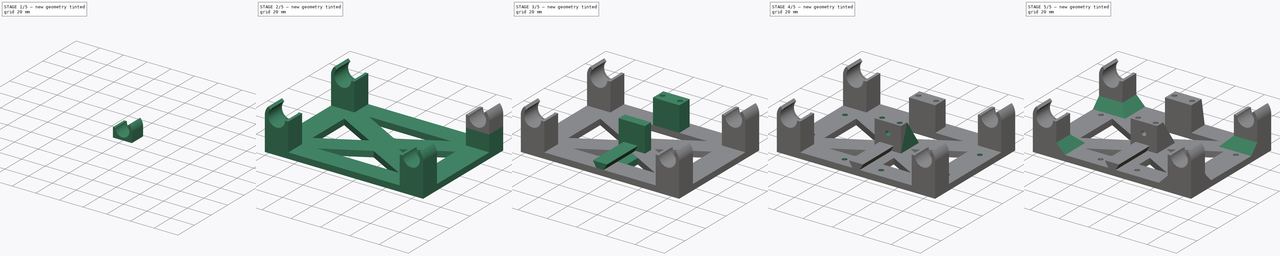
[diagram: build sequence overview — one tinted view per stage of 5, left to right]
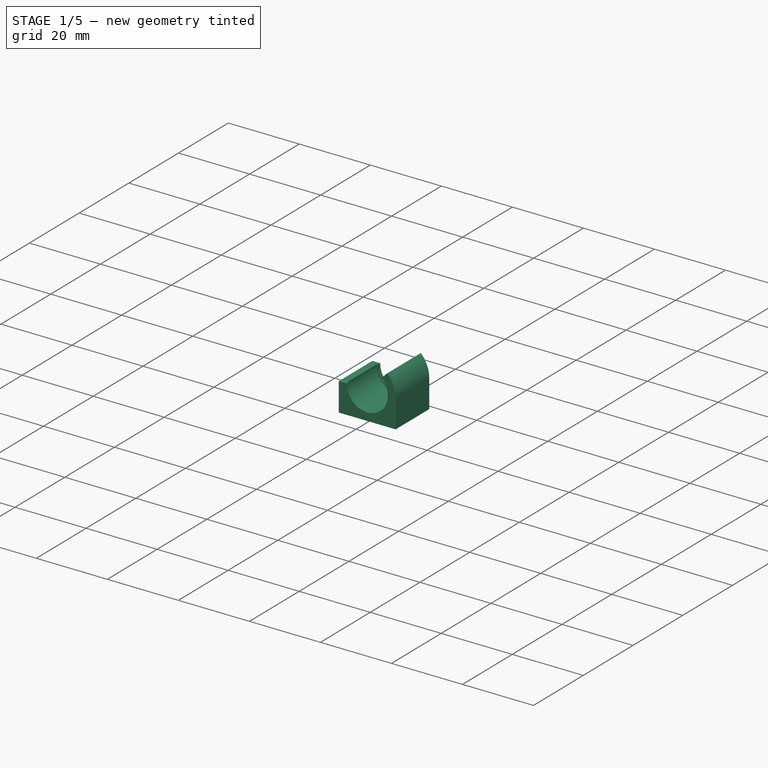
[diagram: stage 1 of 5 — iso view after this stage's code; geometry added in this stage tinted green]
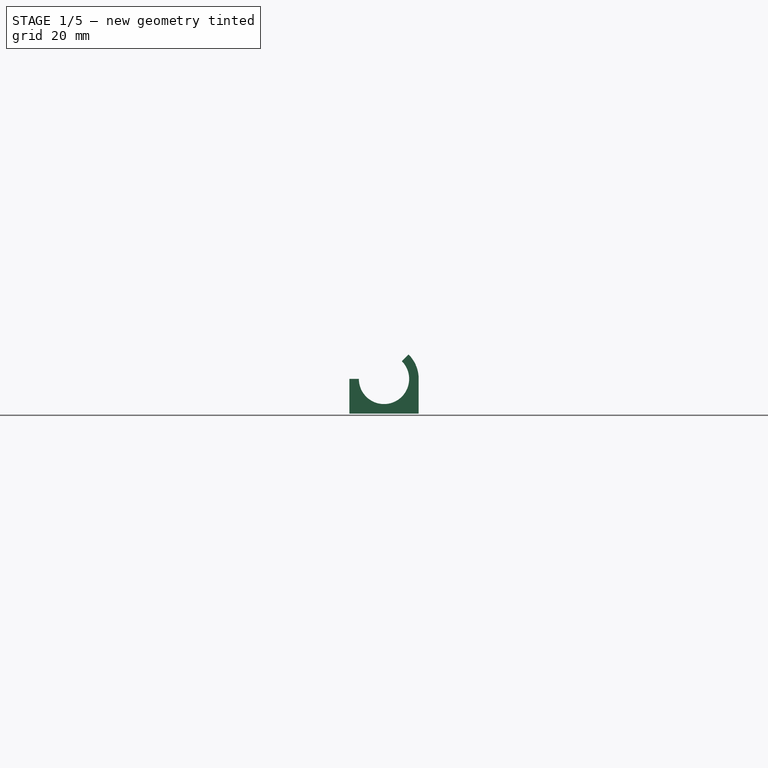
[diagram: stage 1 of 5 — front view after this stage's code; geometry added in this stage tinted green]
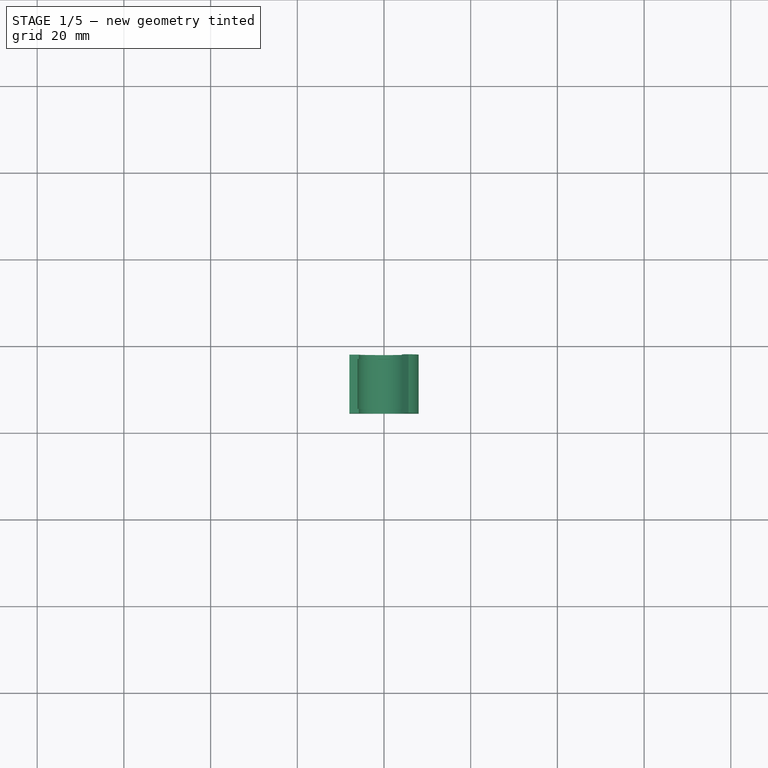
[diagram: stage 1 of 5 — top view after this stage's code; geometry added in this stage tinted green]
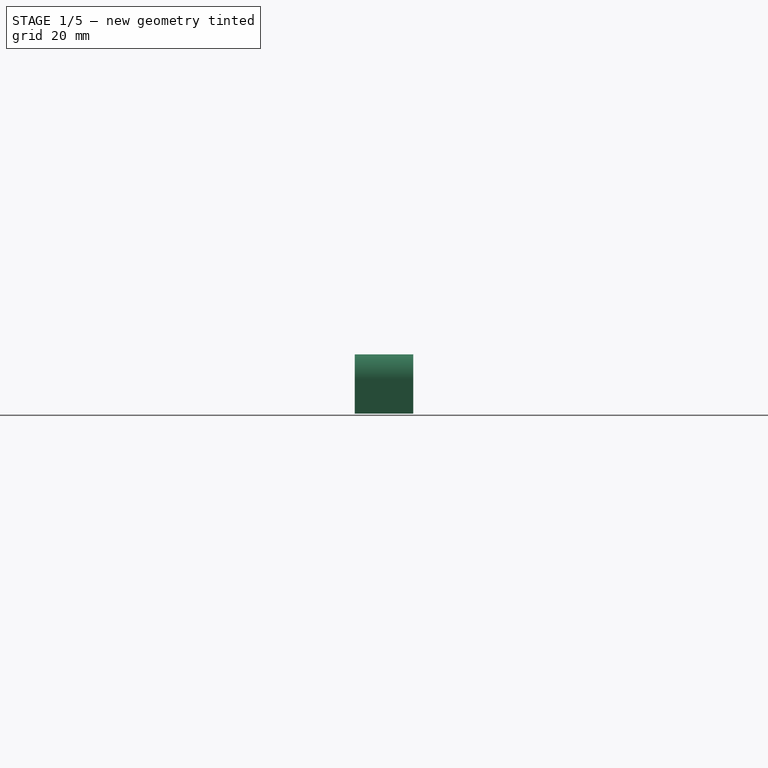
[diagram: stage 1 of 5 — right view after this stage's code; geometry added in this stage tinted green]
FCSTD DOCUMENT  (FreeCAD 0.18R13971 (Git))
Label: BedClamping
License: All rights reserved
LicenseURL: http://en.wikipedia.org/wiki/All_rights_reserved
objects: Sketcher::SketchObject×13, PartDesign::Pad×8, PartDesign::Pocket×5, Part::FeaturePython×5, PartDesign::Draft×2, PartDesign::Body×2, PartDesign::Plane×1, PartDesign::Chamfer×1, Part::MultiFuse×1
note: 51 computed .brp shape members not serialized (recipe doc carries the construction recipe); baked Part::Feature solids carry a one-line shape summary decoded from their .brp

FEATURE [Sketcher::SketchObject] Sketch  label="ClipSketch"
  MapMode = 5
  Placement = pos=(0,0,0) rot=(0.57735,0.57735,0.57735;2.0944rad)
  Support = -> [YZ_Plane]
  sketch-geometry (8):
    g0: LineSegment StartX=-8 StartY=0 StartZ=0 EndX=-8 EndY=-8 EndZ=0
    g1: LineSegment StartX=8 StartY=0 StartZ=0 EndX=8 EndY=-8 EndZ=0
    g2: LineSegment StartX=-8 StartY=-8 StartZ=0 EndX=8 EndY=-8 EndZ=0
    g3: ArcOfCircle CenterX=0 CenterY=0 CenterZ=0 NormalX=0 NormalY=0 NormalZ=1 AngleXU=0 Radius=8 StartAngle=2.35619 EndAngle=3.14159
    g4: ArcOfCircle CenterX=0 CenterY=0 CenterZ=0 NormalX=0 NormalY=0 NormalZ=1 AngleXU=0 Radius=6.1 StartAngle=2.35619 EndAngle=3.14159
    g5: ArcOfCircle CenterX=0 CenterY=0 CenterZ=0 NormalX=0 NormalY=0 NormalZ=1 AngleXU=0 Radius=6.1 StartAngle=3.14159 EndAngle=6.28319
    g6: LineSegment StartX=-5.65685 StartY=5.65685 StartZ=0 EndX=-4.31335 EndY=4.31335 EndZ=0
    g7: LineSegment StartX=8 StartY=0 StartZ=0 EndX=6.1 EndY=0 EndZ=0
  constraints (22):
    c: Symmetric(g0,g1,g-2)
    c: Symmetric(g0,g1,g-2)
    c: PointOnObject(g0,g-1)
    c: Vertical(g0)
    c: Coincident(g2,g0)
    c: Coincident(g2,g1)
    c: Distance(g1) = 8
    c: Coincident(g3,g-1)
    c: Coincident(g3,g0)
    c: Radius(g3) = 8
    c: Angle(g3) = 0.785398
    c: Coincident(g4,g3)
    c: PointOnObject(g4,g-1)
    c: PointOnObject(g5,g-1)
    c: Coincident(g5,g3)
    c: Coincident(g5,g4)
    c: Coincident(g6,g3)
    c: Coincident(g6,g4)
    c: Coincident(g7,g1)
    c: Coincident(g7,g5)
    c: Radius(g5) = 6.1
    c: Perpendicular(g3,g6)
FEATURE [PartDesign::Pad] Pad  label="ClipPad"
  Length = 13.5
  Length2 = 100
  Placement = pos=(0,0,0) rot=(0.57735,0.57735,0.57735;2.0944rad)
  Profile = -> Sketch
  Type = 0
FEATURE [Sketcher::SketchObject] Sketch001  label="ClipNotch1Sketch"
  ExternalGeometry = -> [Pad]
  MapMode = 5
  Placement = pos=(0,0,0) rot=(0.57735,0.57735,0.57735;2.0944rad)
  Support = -> [YZ_Plane]
  sketch-geometry (4):
    g0: ArcOfCircle CenterX=0 CenterY=0 CenterZ=0 NormalX=0 NormalY=0 NormalZ=1 AngleXU=0 Radius=5.8 StartAngle=2.35619 EndAngle=6.28319
    g1: ArcOfCircle CenterX=0 CenterY=0 CenterZ=0 NormalX=0 NormalY=0 NormalZ=1 AngleXU=0 Radius=6.1 StartAngle=2.35619 EndAngle=6.28319
    g2: LineSegment StartX=-4.10122 StartY=4.10122 StartZ=0 EndX=-4.31335 EndY=4.31335 EndZ=0
    g3: LineSegment StartX=5.8 StartY=0 StartZ=0 EndX=6.1 EndY=0 EndZ=0
  constraints (11):
    c: Coincident(g1,g-4)
    c: Coincident(g1,g-3)
    c: Coincident(g2,g1)
    c: Perpendicular(g1,g2)
    c: Coincident(g3,g1)
    c: Coincident(g0,g3)
    c: Coincident(g0,g2)
    c: Coincident(g0,g-1)
    c: PointOnObject(g0,g-1)
    c: Perpendicular(g1,g3)
    c: Radius(g0) = 5.8
FEATURE [PartDesign::Pad] Pad001  label="ClipNotch1Pad"
  BaseFeature = -> Pad
  Length = 1
  Length2 = 100
  Placement = pos=(0,0,0) rot=(0.57735,0.57735,0.57735;2.0944rad)
  Profile = -> Sketch001
  Type = 0
FEATURE [PartDesign::Body] Body001  label="Frame"
  Group = -> [Sketch003,Pad003,Sketch004,Pad004,Sketch005,Pad005,Sketch006,Pocket,Sketch007,Pad006,Sketch008,Pad007,Sketch009,Pocket001,Sketch010,Sketch011,Pocket003,Sketch012,Pocket004,Draft,DatumPlane,Pocket002,Draft001,Chamfer]
  Origin = -> Origin001
  Tip = -> Chamfer
FEATURE [Sketcher::SketchObject] Sketch013  label="ClipNotch2Sketch"
  ExternalGeometry = -> [Pad001]
  MapMode = 5
  Placement = pos=(13.5,-2e-12,2e-12) rot=(0.57735,0.57735,0.57735;2.0944rad)
  Support = -> [Pad001]
  sketch-geometry (4):
    g0: ArcOfCircle CenterX=0 CenterY=0 CenterZ=0 NormalX=0 NormalY=0 NormalZ=1 AngleXU=0 Radius=6.1 StartAngle=2.35619 EndAngle=6.28319
    g1: ArcOfCircle CenterX=0 CenterY=0 CenterZ=0 NormalX=0 NormalY=0 NormalZ=1 AngleXU=0 Radius=5.8 StartAngle=2.35619 EndAngle=6.28319
    g2: LineSegment StartX=-4.31335 StartY=4.31335 StartZ=0 EndX=-4.10122 EndY=4.10122 EndZ=0
    g3: LineSegment StartX=5.8 StartY=0 StartZ=0 EndX=6.1 EndY=0 EndZ=0
  constraints (10):
    c: Coincident(g0,g-1)
    c: Coincident(g0,g-3)
    c: PointOnObject(g0,g-1)
    c: Coincident(g1,g0)
    c: Coincident(g1,g-4)
    c: PointOnObject(g1,g-1)
    c: Coincident(g2,g0)
    c: Coincident(g2,g1)
    c: Coincident(g3,g1)
    c: Coincident(g3,g0)
FEATURE [PartDesign::Pad] Pad008  label="ClipNotch2Pad"
  BaseFeature = -> Pad001
  Length = 1
  Length2 = 100
  Placement = pos=(0,0,0) rot=(0.57735,0.57735,0.57735;2.0944rad)
  Profile = -> Sketch013
  Reversed = true
  Type = 0
FEATURE [Part::FeaturePython] Clone003  label="Clip4"  # Draft clone (typed FeaturePython)
  AttacherType = Attacher::AttachEngine3D
  Fuse = false
  Objects = -> [Body]
  Placement = pos=(100,64.5,23) rot=(0,0,1;1.5708rad)
  Scale = (1,1,1)
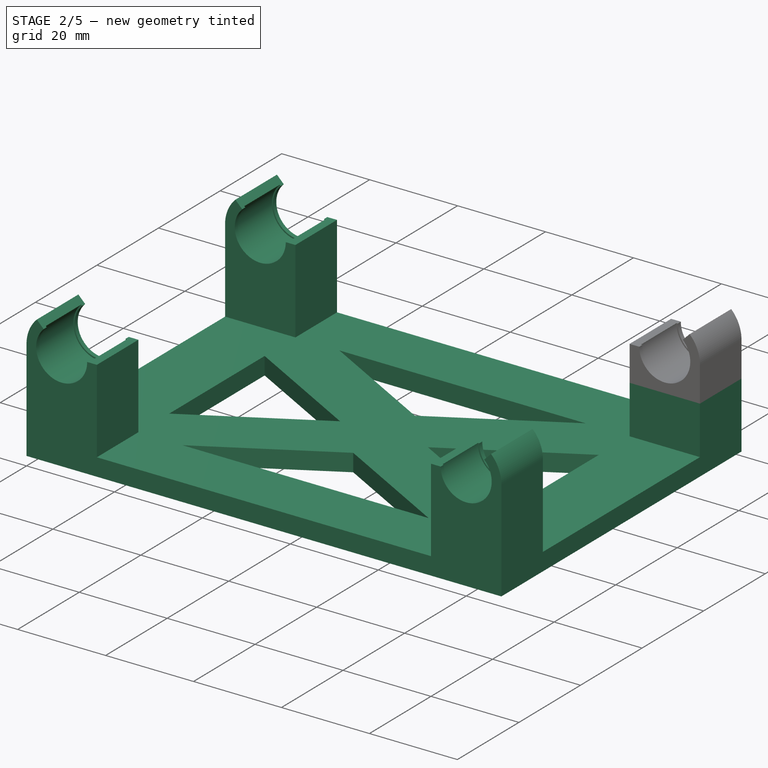
[diagram: stage 2 of 5 — iso view after this stage's code; geometry added in this stage tinted green]
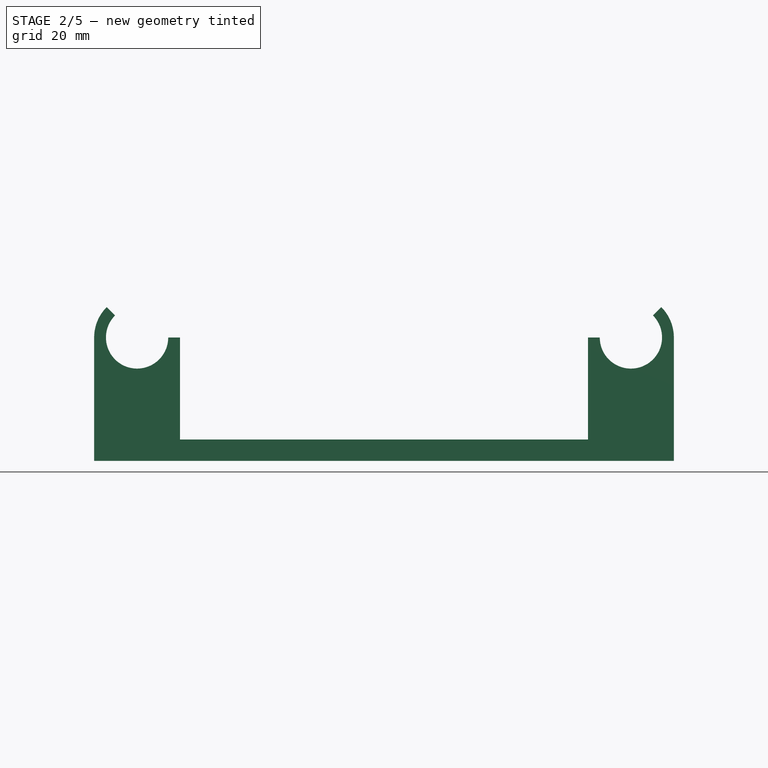
[diagram: stage 2 of 5 — front view after this stage's code; geometry added in this stage tinted green]
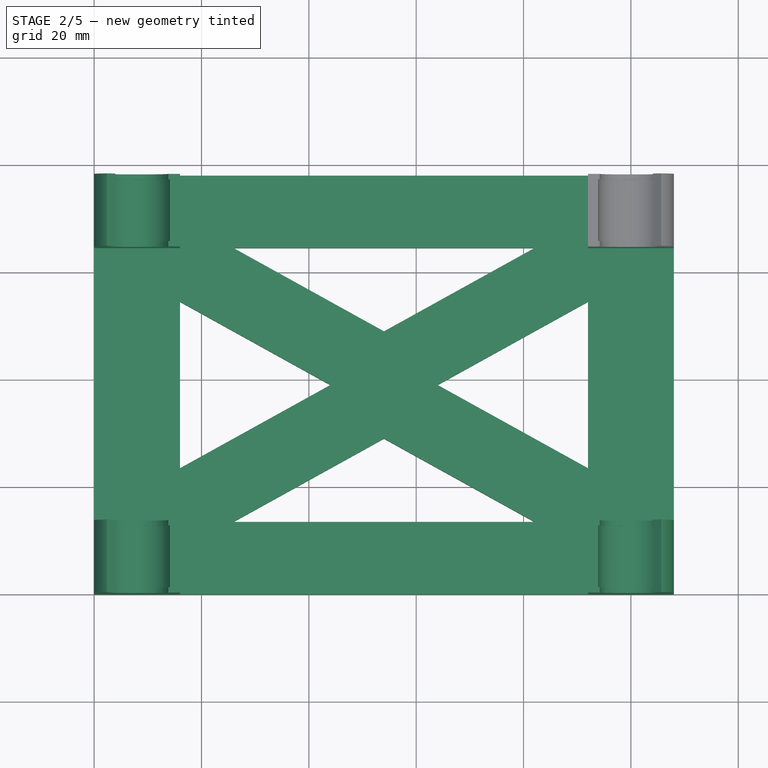
[diagram: stage 2 of 5 — top view after this stage's code; geometry added in this stage tinted green]
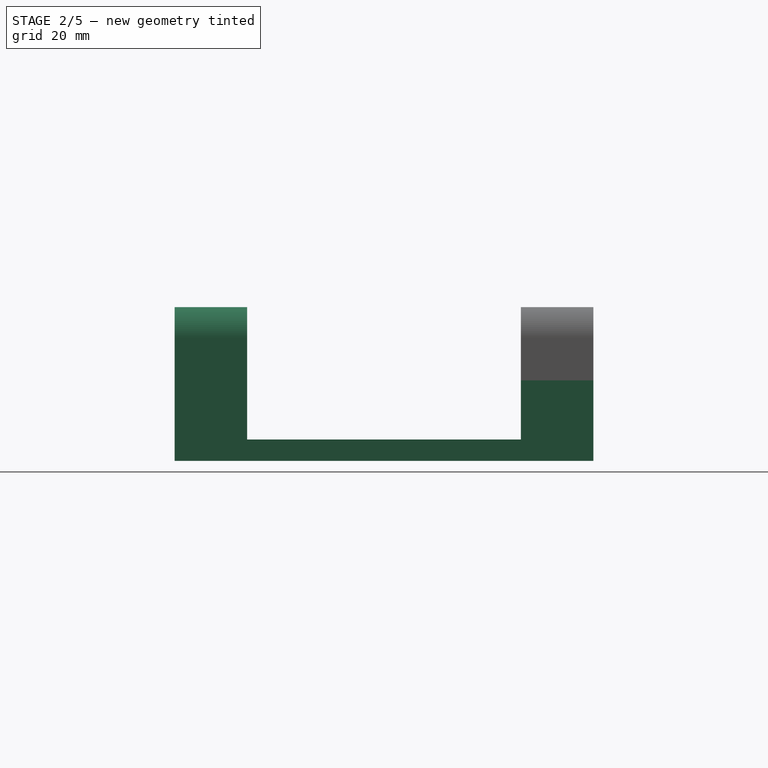
[diagram: stage 2 of 5 — right view after this stage's code; geometry added in this stage tinted green]
FEATURE [Sketcher::SketchObject] Sketch003  label="FrameSketch"
  MapMode = 5
  Support = -> [XY_Plane001]
  sketch-geometry (28):
    g0: LineSegment StartX=0 StartY=0 StartZ=0 EndX=108 EndY=0 EndZ=0
    g1: LineSegment StartX=108 StartY=0 StartZ=0 EndX=108 EndY=78 EndZ=0
    g2: LineSegment StartX=108 StartY=78 StartZ=0 EndX=0 EndY=78 EndZ=0
    g3: LineSegment StartX=0 StartY=78 StartZ=0 EndX=0 EndY=0 EndZ=0
    g4: LineSegment StartX=26 StartY=64.5 StartZ=0 EndX=82 EndY=64.5 EndZ=0
    g5: LineSegment StartX=92 StartY=54.5 StartZ=0 EndX=92 EndY=23.5 EndZ=0
    g6: LineSegment StartX=82 StartY=13.5 StartZ=0 EndX=26 EndY=13.5 EndZ=0
    g7: LineSegment StartX=16 StartY=23.5 StartZ=0 EndX=16 EndY=54.5 EndZ=0
    g8: LineSegment StartX=16 StartY=23.5 StartZ=0 EndX=44 EndY=39 EndZ=0
    g9: LineSegment StartX=26 StartY=13.5 StartZ=0 EndX=54 EndY=29 EndZ=0
    g10: LineSegment StartX=26 StartY=64.5 StartZ=0 EndX=54 EndY=49 EndZ=0
    g11: LineSegment StartX=82 StartY=13.5 StartZ=0 EndX=54 EndY=29 EndZ=0
    g12: LineSegment StartX=64 StartY=39 StartZ=0 EndX=92 EndY=23.5 EndZ=0
    g13: LineSegment StartX=54 StartY=49 StartZ=0 EndX=82 EndY=64.5 EndZ=0
    g14: LineSegment StartX=44 StartY=39 StartZ=0 EndX=16 EndY=54.5 EndZ=0
    g15: LineSegment StartX=64 StartY=39 StartZ=0 EndX=92 EndY=54.5 EndZ=0
    g16: LineSegment [constr] StartX=54 StartY=29 StartZ=0 EndX=54 EndY=39 EndZ=0
    g17: LineSegment [constr] StartX=54 StartY=39 StartZ=0 EndX=54 EndY=49 EndZ=0
    g18: LineSegment [constr] StartX=64 StartY=39 StartZ=0 EndX=54 EndY=39 EndZ=0
    g19: LineSegment [constr] StartX=44 StartY=39 StartZ=0 EndX=54 EndY=39 EndZ=0
    g20: LineSegment [constr] StartX=26 StartY=64.5 StartZ=0 EndX=16 EndY=64.5 EndZ=0
    g21: LineSegment [constr] StartX=16 StartY=64.5 StartZ=0 EndX=16 EndY=54.5 EndZ=0
    g22: LineSegment [constr] StartX=16 StartY=23.5 StartZ=0 EndX=16 EndY=13.5 EndZ=0
    g23: LineSegment [constr] StartX=16 StartY=13.5 StartZ=0 EndX=26 EndY=13.5 EndZ=0
    g24: LineSegment [constr] StartX=82 StartY=13.5 StartZ=0 EndX=92 EndY=13.5 EndZ=0
    g25: LineSegment [constr] StartX=92 StartY=13.5 StartZ=0 EndX=92 EndY=23.5 EndZ=0
    g26: LineSegment [constr] StartX=92 StartY=54.5 StartZ=0 EndX=92 EndY=64.5 EndZ=0
    g27: LineSegment [constr] StartX=82 StartY=64.5 StartZ=0 EndX=92 EndY=64.5 EndZ=0
  constraints (76):
    c: Coincident(g0,g1)
    c: Coincident(g1,g2)
    c: Coincident(g2,g3)
    c: Coincident(g3,g0)
    c: Horizontal(g0)
    c: Horizontal(g2)
    c: Vertical(g1)
    c: Vertical(g3)
    c: Coincident(g0,g-1)
    c: Distance(g2) = 108
    c: Distance(g3) = 78
    c: Horizontal(g4)
    c: Horizontal(g6)
    c: Vertical(g5)
    c: Vertical(g7)
    c: Coincident(g13,g10)
    c: Coincident(g14,g8)
    c: Coincident(g9,g11)
    c: Coincident(g15,g12)
    c: Equal(g10,g13)
    c: Equal(g13,g9)
    c: Equal(g9,g11)
    c: Equal(g14,g8)
    c: Equal(g8,g12)
    c: Equal(g12,g15)
    c: Coincident(g16,g9)
    c: Coincident(g17,g16)
    c: Coincident(g17,g10)
    c: Coincident(g18,g12)
    c: Coincident(g18,g16)
    c: Horizontal(g18)
    c: Coincident(g19,g8)
    c: Coincident(g19,g16)
    c: Vertical(g17)
    c: Equal(g18,g19)
    c: Equal(g19,g16)
    c: Equal(g16,g17)
    c: Horizontal(g19)
    c: Vertical(g16)
    c: Parallel(g15,g13)
    c: Parallel(g8,g9)
    c: Parallel(g14,g10)
    c: Coincident(g4,g13)
    c: Coincident(g5,g15)
    c: Coincident(g5,g12)
    c: Coincident(g6,g11)
    c: Coincident(g4,g10)
    c: Coincident(g7,g14)
    c: Coincident(g7,g8)
    c: Coincident(g6,g9)
    c: Coincident(g20,g4)
    c: Coincident(g21,g20)
    c: Coincident(g21,g7)
    c: Coincident(g22,g7)
    c: Coincident(g23,g22)
    c: Coincident(g23,g6)
    c: Coincident(g24,g6)
    c: Coincident(g25,g5)
    c: Coincident(g26,g5)
    c: Coincident(g27,g4)
    c: Coincident(g27,g26)
    c: Coincident(g24,g25)
    c: Vertical(g21)
    c: Horizontal(g20)
    c: DistanceY(g0,g22) = 13.5
    c: DistanceX(g0,g22) = 16
    c: DistanceX(g24,g0) = 16
    c: DistanceY(g20,g2) = 13.5
    c: Equal(g21,g20)
    c: Equal(g20,g27)
    c: Equal(g27,g26)
    c: Equal(g26,g25)
    c: Equal(g25,g24)
    c: Equal(g24,g23)
    c: Equal(g23,g22)
    c: Distance(g8,g12) = 20
FEATURE [PartDesign::Pad] Pad003  label="FramePad"
  Length = 4
  Length2 = 100
  Profile = -> Sketch003
  Type = 0
FEATURE [Sketcher::SketchObject] Sketch004  label="BearingsBaseSketch"
  ExternalGeometry = -> [Pad003]
  MapMode = 5
  Support = -> [XY_Plane001]
  sketch-geometry (16):
    g0: LineSegment StartX=0 StartY=78 StartZ=0 EndX=16 EndY=78 EndZ=0
    g1: LineSegment StartX=16 StartY=78 StartZ=0 EndX=16 EndY=64.5 EndZ=0
    g2: LineSegment StartX=16 StartY=64.5 StartZ=0 EndX=0 EndY=64.5 EndZ=0
    g3: LineSegment StartX=0 StartY=64.5 StartZ=0 EndX=0 EndY=78 EndZ=0
    g4: LineSegment StartX=108 StartY=78 StartZ=0 EndX=92 EndY=78 EndZ=0
    g5: LineSegment StartX=92 StartY=78 StartZ=0 EndX=92 EndY=64.5 EndZ=0
    g6: LineSegment StartX=92 StartY=64.5 StartZ=0 EndX=108 EndY=64.5 EndZ=0
    g7: LineSegment StartX=108 StartY=64.5 StartZ=0 EndX=108 EndY=78 EndZ=0
    g8: LineSegment StartX=108 StartY=0 StartZ=0 EndX=92 EndY=0 EndZ=0
    g9: LineSegment StartX=92 StartY=0 StartZ=0 EndX=92 EndY=13.5 EndZ=0
    g10: LineSegment StartX=92 StartY=13.5 StartZ=0 EndX=108 EndY=13.5 EndZ=0
    g11: LineSegment StartX=108 StartY=13.5 StartZ=0 EndX=108 EndY=0 EndZ=0
    g12: LineSegment StartX=0 StartY=0 StartZ=0 EndX=16 EndY=0 EndZ=0
    g13: LineSegment StartX=16 StartY=0 StartZ=0 EndX=16 EndY=13.5 EndZ=0
    g14: LineSegment StartX=16 StartY=13.5 StartZ=0 EndX=0 EndY=13.5 EndZ=0
    g15: LineSegment StartX=0 StartY=13.5 StartZ=0 EndX=0 EndY=0 EndZ=0
  constraints (44):
    c: Coincident(g0,g1)
    c: Coincident(g1,g2)
    c: Coincident(g2,g3)
    c: Coincident(g3,g0)
    c: Horizontal(g0)
    c: Horizontal(g2)
    c: Vertical(g1)
    c: Vertical(g3)
    c: Coincident(g0,g-6)
    c: Coincident(g4,g5)
    c: Coincident(g5,g6)
    c: Coincident(g6,g7)
    c: Coincident(g7,g4)
    c: Horizontal(g4)
    c: Horizontal(g6)
    c: Vertical(g5)
    c: Vertical(g7)
    c: Coincident(g4,g-4)
    c: Coincident(g8,g9)
    c: Coincident(g9,g10)
    c: Coincident(g10,g11)
    c: Coincident(g11,g8)
    c: Horizontal(g8)
    c: Horizontal(g10)
    c: Vertical(g9)
    c: Vertical(g11)
    c: Coincident(g8,g-5)
    c: Coincident(g12,g13)
    c: Coincident(g13,g14)
    c: Coincident(g14,g15)
    c: Coincident(g15,g12)
    c: Horizontal(g12)
    c: Horizontal(g14)
    c: Vertical(g13)
    c: Vertical(g15)
    c: Coincident(g12,g-1)
    c: Equal(g2,g6)
    c: Equal(g6,g10)
    c: Equal(g10,g14)
    c: Equal(g1,g13)
    c: Equal(g13,g9)
    c: Equal(g9,g5)
    c: Distance(g1) = 13.5
    c: Distance(g2) = 16
FEATURE [PartDesign::Pad] Pad004  label="BearingsBasePad"
  BaseFeature = -> Pad003
  Length = 15
  Length2 = 100
  Profile = -> Sketch004
  Type = 0
FEATURE [PartDesign::Body] Body  label="Clip_LM6UU"
  Group = -> [Sketch,Pad,Sketch001,Pad001,Sketch013,Pad008]
  Origin = -> Origin
  Tip = -> Pad008
FEATURE [Part::FeaturePython] Clone  label="Clip1"  # Draft clone (typed FeaturePython)
  AttacherType = Attacher::AttachEngine3D
  Fuse = false
  Objects = -> [Body]
  Placement = pos=(8,13.5,23) rot=(0,0,-1;1.5708rad)
  Scale = (1,1,1)
FEATURE [Part::FeaturePython] Clone001  label="Clip2"  # Draft clone (typed FeaturePython)
  AttacherType = Attacher::AttachEngine3D
  Fuse = false
  Objects = -> [Body]
  Placement = pos=(8,78,23) rot=(0,0,-1;1.5708rad)
  Scale = (1,1,1)
FEATURE [Part::FeaturePython] Clone002  label="Clip3"  # Draft clone (typed FeaturePython)
  AttacherType = Attacher::AttachEngine3D
  Fuse = false
  Objects = -> [Body]
  Placement = pos=(100,0,23) rot=(0,0,1;1.5708rad)
  Scale = (1,1,1)
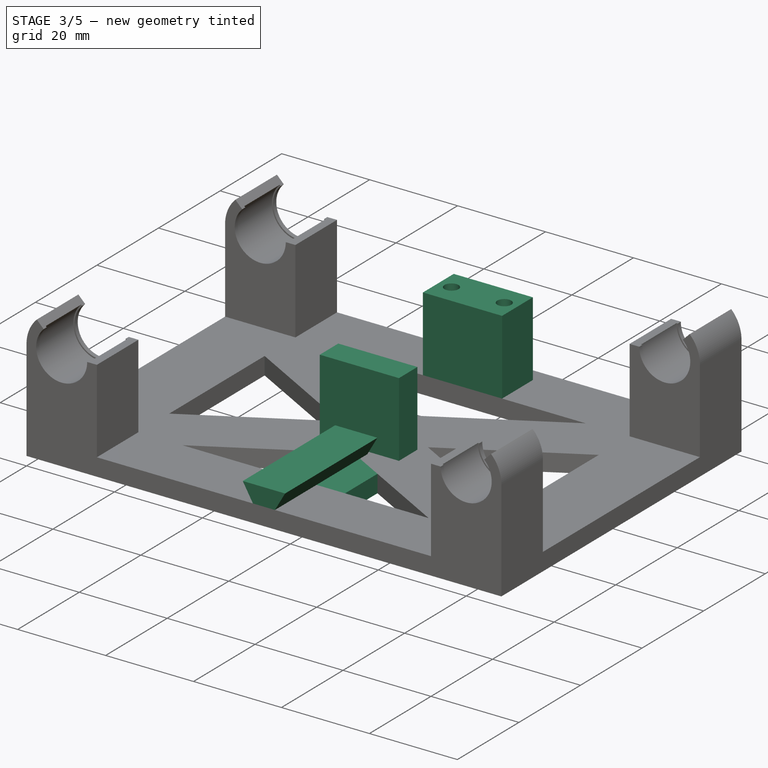
[diagram: stage 3 of 5 — iso view after this stage's code; geometry added in this stage tinted green]
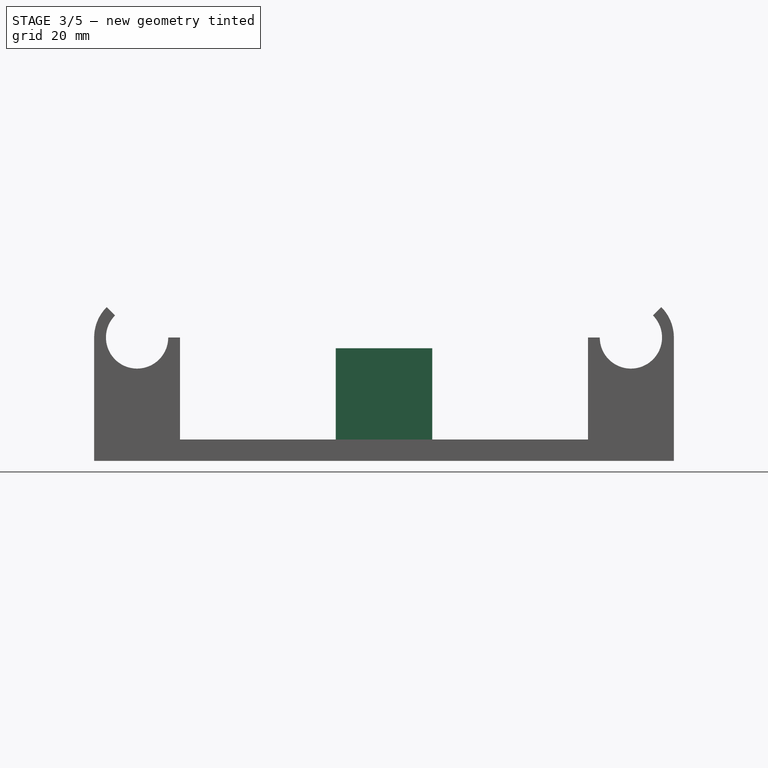
[diagram: stage 3 of 5 — front view after this stage's code; geometry added in this stage tinted green]
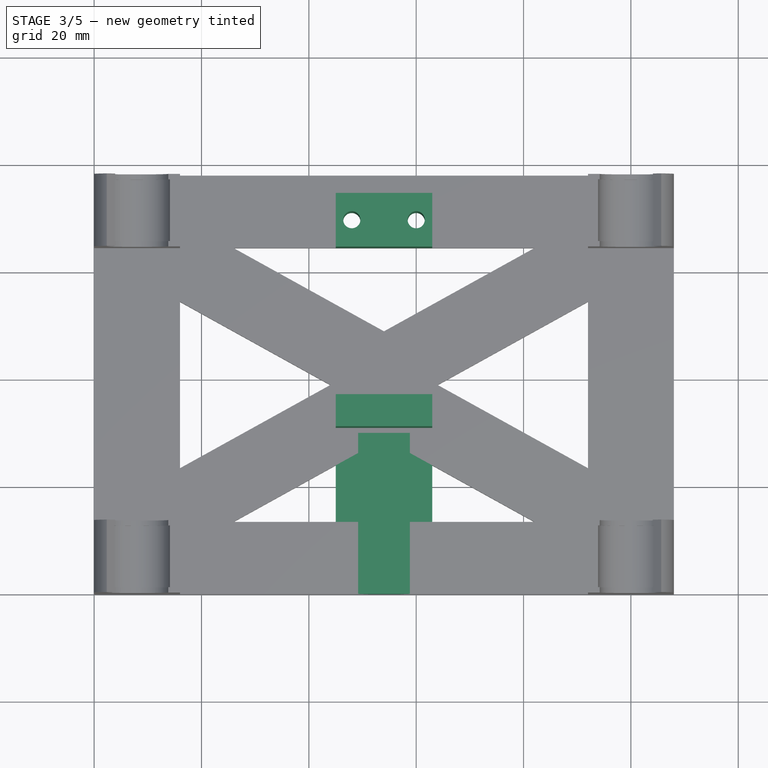
[diagram: stage 3 of 5 — top view after this stage's code; geometry added in this stage tinted green]
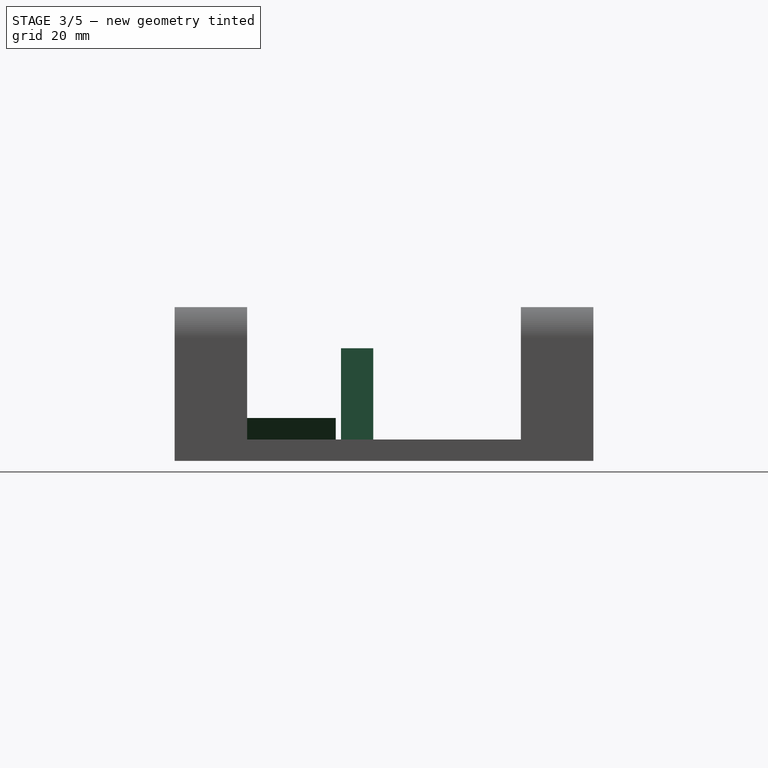
[diagram: stage 3 of 5 — right view after this stage's code; geometry added in this stage tinted green]
FEATURE [Sketcher::SketchObject] Sketch005  label="BeltClampBase1Sketch"
  ExternalGeometry = -> [Pad003]
  MapMode = 5
  Support = -> [XY_Plane001]
  sketch-geometry (7):
    g0: LineSegment StartX=45 StartY=64.5 StartZ=0 EndX=63 EndY=64.5 EndZ=0
    g1: LineSegment StartX=63 StartY=64.5 StartZ=0 EndX=63 EndY=74.5 EndZ=0
    g2: LineSegment StartX=63 StartY=74.5 StartZ=0 EndX=45 EndY=74.5 EndZ=0
    g3: LineSegment StartX=45 StartY=74.5 StartZ=0 EndX=45 EndY=64.5 EndZ=0
    g4: LineSegment [constr] StartX=54 StartY=78 StartZ=0 EndX=54 EndY=64.5 EndZ=0
    g5: LineSegment [constr] StartX=54 StartY=78 StartZ=0 EndX=0 EndY=78 EndZ=0
    g6: LineSegment [constr] StartX=54 StartY=78 StartZ=0 EndX=108 EndY=78 EndZ=0
  constraints (19):
    c: Coincident(g0,g1)
    c: Coincident(g1,g2)
    c: Coincident(g2,g3)
    c: Coincident(g3,g0)
    c: Horizontal(g2)
    c: Vertical(g1)
    c: Vertical(g3)
    c: Distance(g2) = 18
    c: Distance(g3) = 10
    c: PointOnObject(g4,g-3)
    c: Vertical(g4)
    c: Coincident(g5,g4)
    c: Coincident(g5,g-3)
    c: Coincident(g6,g4)
    c: Coincident(g6,g-3)
    c: Equal(g5,g6)
    c: PointOnObject(g4,g0)
    c: Symmetric(g0,g0,g4)
    c: Distance(g4) = 13.5
FEATURE [PartDesign::Pad] Pad005  label="BeltClampBase1Pad"
  BaseFeature = -> Pad004
  Length = 21
  Length2 = 100
  Profile = -> Sketch005
  Type = 0
FEATURE [Sketcher::SketchObject] Sketch006  label="BeltClampBase1ScrewsSketch"
  ExternalGeometry = -> [Pad005]
  MapMode = 5
  Support = -> [XY_Plane001]
  sketch-geometry (8):
    g0: Circle CenterX=48 CenterY=69.5 CenterZ=0 NormalX=0 NormalY=0 NormalZ=1 AngleXU=0 Radius=1.6
    g1: Circle CenterX=60 CenterY=69.5 CenterZ=0 NormalX=0 NormalY=0 NormalZ=1 AngleXU=0 Radius=1.6
    g2: LineSegment [constr] StartX=60 StartY=69.5 StartZ=0 EndX=60 EndY=74.5 EndZ=0
    g3: LineSegment [constr] StartX=60 StartY=69.5 StartZ=0 EndX=63 EndY=69.5 EndZ=0
    g4: LineSegment [constr] StartX=60 StartY=69.5 StartZ=0 EndX=60 EndY=64.5 EndZ=0
    g5: LineSegment [constr] StartX=48 StartY=69.5 StartZ=0 EndX=48 EndY=74.5 EndZ=0
    g6: LineSegment [constr] StartX=48 StartY=69.5 StartZ=0 EndX=45 EndY=69.5 EndZ=0
    g7: LineSegment [constr] StartX=48 StartY=69.5 StartZ=0 EndX=48 EndY=64.5 EndZ=0
  constraints (24):
    c: Coincident(g2,g1)
    c: PointOnObject(g2,g-5)
    c: Coincident(g3,g1)
    c: PointOnObject(g3,g-4)
    c: Coincident(g4,g1)
    c: PointOnObject(g4,g-3)
    c: Coincident(g5,g0)
    c: PointOnObject(g5,g-5)
    c: Coincident(g6,g0)
    c: PointOnObject(g6,g-6)
    c: Coincident(g7,g0)
    c: PointOnObject(g7,g-3)
    c: Vertical(g5)
    c: Vertical(g2)
    c: Vertical(g7)
    c: Horizontal(g6)
    c: Horizontal(g3)
    c: Equal(g0,g1)
    c: Radius(g0) = 1.6
    c: Equal(g5,g7)
    c: Equal(g7,g4)
    c: Equal(g4,g2)
    c: Equal(g3,g6)
    c: Distance(g6) = 3
FEATURE [PartDesign::Pocket] Pocket  label="BeltClampBase1ScrewsPocket"
  BaseFeature = -> Pad005
  Length = 5
  Length2 = 100
  Profile = -> Sketch006
  Reversed = true
  Type = 1
FEATURE [Sketcher::SketchObject] Sketch007  label="BeltClampBase2Sketch"
  ExternalGeometry = -> [Pad003]
  MapMode = 5
  Support = -> [XY_Plane001]
  sketch-geometry (6):
    g0: LineSegment StartX=45 StartY=31 StartZ=0 EndX=63 EndY=31 EndZ=0
    g1: LineSegment StartX=63 StartY=31 StartZ=0 EndX=63 EndY=37 EndZ=0
    g2: LineSegment StartX=63 StartY=37 StartZ=0 EndX=45 EndY=37 EndZ=0
    g3: LineSegment StartX=45 StartY=37 StartZ=0 EndX=45 EndY=31 EndZ=0
    g4: LineSegment [constr] StartX=54 StartY=34 StartZ=0 EndX=0 EndY=34 EndZ=0
    g5: LineSegment [constr] StartX=54 StartY=34 StartZ=0 EndX=108 EndY=34 EndZ=0
  constraints (17):
    c: Coincident(g0,g1)
    c: Coincident(g1,g2)
    c: Coincident(g2,g3)
    c: Coincident(g3,g0)
    c: Horizontal(g2)
    c: Distance(g3) = 6
    c: PointOnObject(g4,g-3)
    c: Horizontal(g4)
    c: Symmetric(g1,g0,g4)
    c: Symmetric(g0,g2,g4)
    c: Vertical(g1)
    c: Distance(g2) = 18
    c: Coincident(g5,g4)
    c: PointOnObject(g5,g-4)
    c: Equal(g4,g5)
    c: Horizontal(g5)
    c: Distance(g-3,g4) = 44
FEATURE [PartDesign::Pad] Pad006  label="BeltClampBase2Pad"
  BaseFeature = -> Pocket
  Length = 21
  Length2 = 100
  Profile = -> Sketch007
  Type = 0
FEATURE [Sketcher::SketchObject] Sketch008  label="BeltTensionerRailSketch"
  ExternalGeometry = -> [Pad003]
  MapMode = 5
  Placement = pos=(0,0,0) rot=(1,0,0;1.5708rad)
  Support = -> [XZ_Plane001]
  sketch-geometry (10):
    g0: LineSegment [constr] StartX=0 StartY=0 StartZ=0 EndX=45 EndY=0 EndZ=0
    g1: LineSegment [constr] StartX=108 StartY=0 StartZ=0 EndX=63 EndY=0 EndZ=0
    g2: LineSegment StartX=63 StartY=0 StartZ=0 EndX=63 EndY=4 EndZ=0
    g3: LineSegment StartX=45 StartY=0 StartZ=0 EndX=45 EndY=4 EndZ=0
    g4: LineSegment StartX=45 StartY=4 StartZ=0 EndX=51.5 EndY=4 EndZ=0
    g5: LineSegment StartX=63 StartY=4 StartZ=0 EndX=56.5 EndY=4 EndZ=0
    g6: LineSegment StartX=51.5 StartY=4 StartZ=0 EndX=49.1906 EndY=8 EndZ=0
    g7: LineSegment StartX=49.1906 StartY=8 StartZ=0 EndX=58.8094 EndY=8 EndZ=0
    g8: LineSegment StartX=58.8094 StartY=8 StartZ=0 EndX=56.5 EndY=4 EndZ=0
    g9: LineSegment StartX=45 StartY=0 StartZ=0 EndX=63 EndY=0 EndZ=0
  constraints (28):
    c: Coincident(g0,g-1)
    c: PointOnObject(g0,g-1)
    c: Coincident(g1,g-3)
    c: PointOnObject(g1,g-1)
    c: Coincident(g2,g1)
    c: PointOnObject(g2,g-4)
    c: Vertical(g2)
    c: Coincident(g3,g0)
    c: PointOnObject(g3,g-4)
    c: Vertical(g3)
    c: Coincident(g4,g3)
    c: PointOnObject(g4,g-4)
    c: Coincident(g5,g2)
    c: PointOnObject(g5,g-4)
    c: Coincident(g6,g4)
    c: Coincident(g7,g6)
    c: Horizontal(g7)
    c: Coincident(g8,g7)
    c: Coincident(g8,g5)
    c: Coincident(g9,g0)
    c: Coincident(g9,g1)
    c: Equal(g1,g0)
    c: Equal(g4,g5)
    c: Equal(g6,g8)
    c: Angle(g6,g4) = 1.0472
    c: Distance(g4,g5) = 5
    c: Distance(g4,g7) = 4
    c: Distance(g9) = 18
FEATURE [PartDesign::Pad] Pad007  label="BeltTensionerRailPad"
  BaseFeature = -> Pad006
  Length = 30
  Length2 = 100
  Profile = -> Sketch008
  Reversed = true
  Type = 0
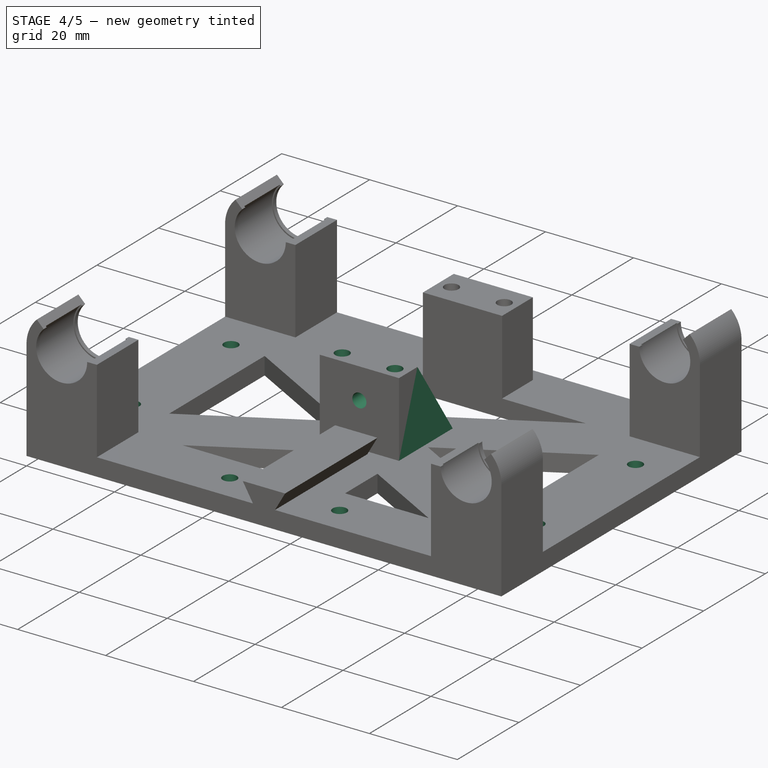
[diagram: stage 4 of 5 — iso view after this stage's code; geometry added in this stage tinted green]
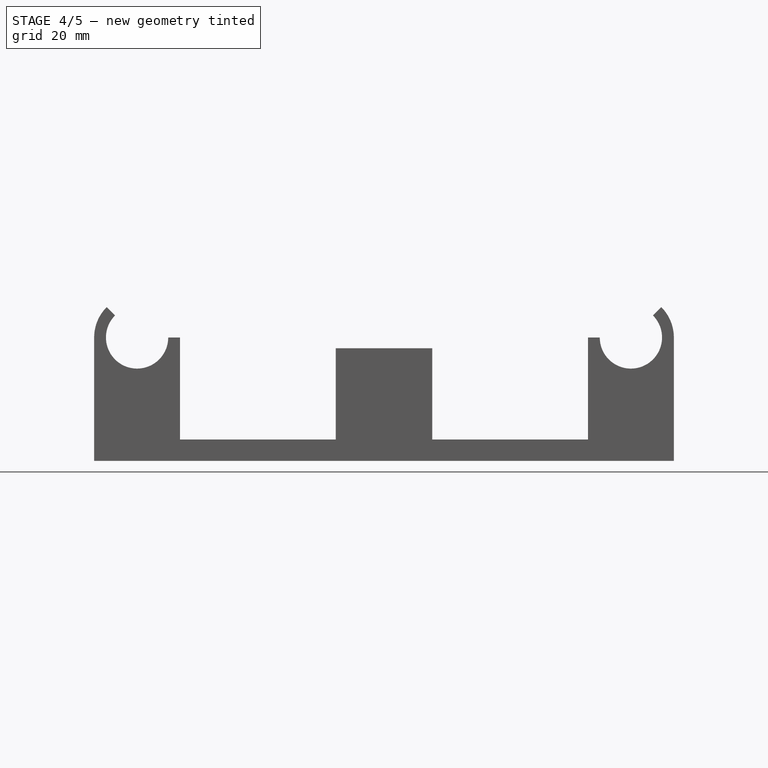
[diagram: stage 4 of 5 — front view after this stage's code; geometry added in this stage tinted green]
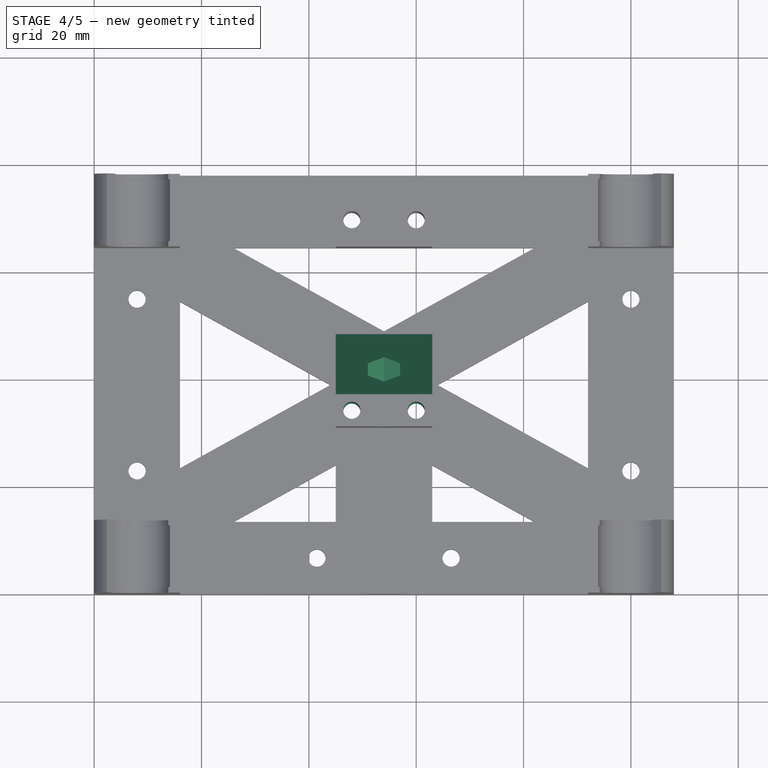
[diagram: stage 4 of 5 — top view after this stage's code; geometry added in this stage tinted green]
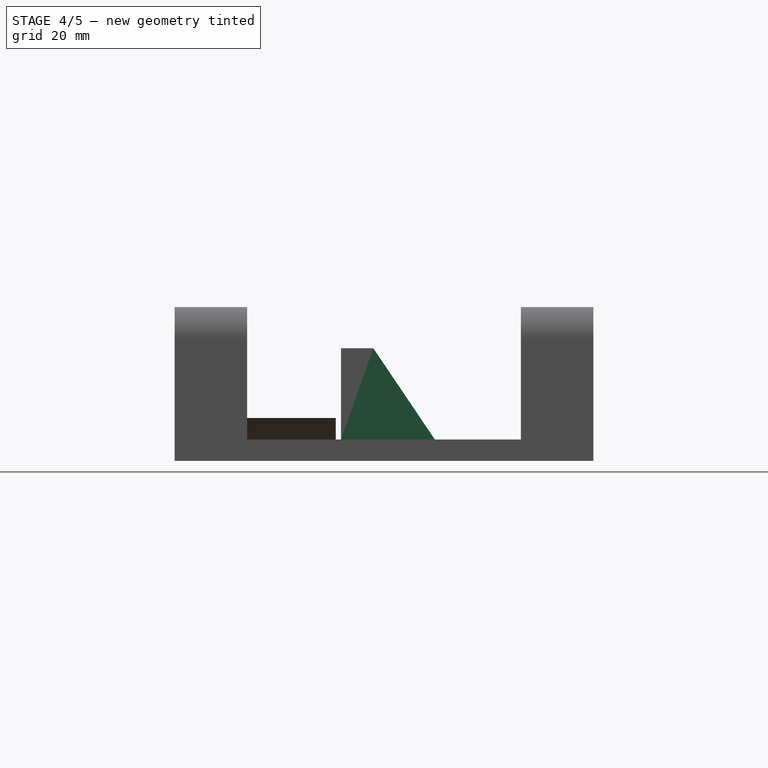
[diagram: stage 4 of 5 — right view after this stage's code; geometry added in this stage tinted green]
FEATURE [Sketcher::SketchObject] Sketch009  label="BeltTensionerScrewSketch"
  ExternalGeometry = -> [Pad003]
  MapMode = 5
  Placement = pos=(0,0,0) rot=(1,0,0;1.5708rad)
  Support = -> [XZ_Plane001]
  sketch-geometry (4):
    g0: LineSegment [constr] StartX=0 StartY=0 StartZ=0 EndX=54 EndY=0 EndZ=0
    g1: LineSegment [constr] StartX=54 StartY=0 StartZ=0 EndX=108 EndY=0 EndZ=0
    g2: LineSegment [constr] StartX=54 StartY=0 StartZ=0 EndX=54 EndY=14 EndZ=0
    g3: Circle CenterX=54 CenterY=14 CenterZ=0 NormalX=0 NormalY=0 NormalZ=1 AngleXU=0 Radius=1.6
  constraints (10):
    c: Coincident(g0,g-1)
    c: PointOnObject(g0,g-1)
    c: Coincident(g1,g0)
    c: Coincident(g1,g-3)
    c: Coincident(g2,g0)
    c: Vertical(g2)
    c: Coincident(g3,g2)
    c: Equal(g1,g0)
    c: Radius(g3) = 1.6
    c: Distance(g2) = 14
FEATURE [PartDesign::Pocket] Pocket001  label="BeltTensionerScrewPocket"
  BaseFeature = -> Pad007
  Length = 0
  Length2 = 100
  Profile = -> Sketch009
  Type = 3
  UpToFace = -> Pad007 [Face66]
FEATURE [PartDesign::Plane] DatumPlane  label="BeltTensionerNutPlane"
  AttachmentOffset = pos=(0,0,-38) rot=(0,0,1;0rad)
  MapMode = 5
  Placement = pos=(0,38,4e-12) rot=(1,0,0;1.5708rad)
  Support = -> [XZ_Plane001]
FEATURE [Sketcher::SketchObject] Sketch010  label="BeltTensionerNutSketch"
  MapMode = 5
  Placement = pos=(0,38,4e-12) rot=(1,0,0;1.5708rad)
  Support = -> [DatumPlane]
  sketch-geometry (7):
    g0: LineSegment StartX=54 StartY=10.5359 StartZ=0 EndX=57 EndY=12.2679 EndZ=0
    g1: LineSegment StartX=57 StartY=12.2679 StartZ=0 EndX=57 EndY=15.7321 EndZ=0
    g2: LineSegment StartX=57 StartY=15.7321 StartZ=0 EndX=54 EndY=17.4641 EndZ=0
    g3: LineSegment StartX=54 StartY=17.4641 StartZ=0 EndX=51 EndY=15.7321 EndZ=0
    g4: LineSegment StartX=51 StartY=15.7321 StartZ=0 EndX=51 EndY=12.2679 EndZ=0
    g5: LineSegment StartX=51 StartY=12.2679 StartZ=0 EndX=54 EndY=10.5359 EndZ=0
    g6: Circle [constr] CenterX=54 CenterY=14 CenterZ=0 NormalX=0 NormalY=0 NormalZ=1 AngleXU=0 Radius=3.4641
FEATURE [Sketcher::SketchObject] Sketch011  label="FrameScrewsSketch"
  MapMode = 5
  Support = -> [XY_Plane001]
  sketch-geometry (21):
    g0: Circle CenterX=8 CenterY=23 CenterZ=0 NormalX=0 NormalY=0 NormalZ=1 AngleXU=0 Radius=1.6
    g1: Circle CenterX=8 CenterY=55 CenterZ=0 NormalX=0 NormalY=0 NormalZ=1 AngleXU=0 Radius=1.6
    g2: Circle CenterX=100 CenterY=55 CenterZ=0 NormalX=0 NormalY=0 NormalZ=1 AngleXU=0 Radius=1.6
    g3: Circle CenterX=100 CenterY=23 CenterZ=0 NormalX=0 NormalY=0 NormalZ=1 AngleXU=0 Radius=1.6
    g4: Circle CenterX=66.5 CenterY=6.75 CenterZ=0 NormalX=0 NormalY=0 NormalZ=1 AngleXU=0 Radius=1.6
    g5: Circle CenterX=41.5 CenterY=6.75 CenterZ=0 NormalX=0 NormalY=0 NormalZ=1 AngleXU=0 Radius=1.6
    g6: LineSegment [constr] StartX=0 StartY=0 StartZ=0 EndX=108 EndY=0 EndZ=0
    g7: LineSegment [constr] StartX=108 StartY=0 StartZ=0 EndX=108 EndY=78 EndZ=0
    g8: LineSegment [constr] StartX=108 StartY=78 StartZ=0 EndX=0 EndY=78 EndZ=0
    g9: LineSegment [constr] StartX=0 StartY=78 StartZ=0 EndX=0 EndY=0 EndZ=0
    g10: LineSegment [constr] StartX=8 StartY=23 StartZ=0 EndX=8 EndY=55 EndZ=0
    g11: LineSegment [constr] StartX=8 StartY=55 StartZ=0 EndX=100 EndY=55 EndZ=0
    g12: LineSegment [constr] StartX=100 StartY=55 StartZ=0 EndX=100 EndY=23 EndZ=0
    g13: LineSegment [constr] StartX=100 StartY=23 StartZ=0 EndX=8 EndY=23 EndZ=0
    g14: LineSegment [constr] StartX=8 StartY=55 StartZ=0 EndX=8 EndY=78 EndZ=0
    g15: LineSegment [constr] StartX=8 StartY=23 StartZ=0 EndX=8 EndY=0 EndZ=0
    g16: LineSegment [constr] StartX=8 StartY=55 StartZ=0 EndX=0 EndY=55 EndZ=0
    g17: LineSegment [constr] StartX=100 StartY=55 StartZ=0 EndX=108 EndY=55 EndZ=0
    g18: LineSegment [constr] StartX=41.5 StartY=6.75 StartZ=0 EndX=0 EndY=6.75 EndZ=0
    g19: LineSegment [constr] StartX=66.5 StartY=6.75 StartZ=0 EndX=108 EndY=6.75 EndZ=0
    g20: LineSegment [constr] StartX=41.5 StartY=6.75 StartZ=0 EndX=66.5 EndY=6.75 EndZ=0
  constraints (57):
    c: Coincident(g6,g7)
    c: Coincident(g7,g8)
    c: Coincident(g8,g9)
    c: Coincident(g9,g6)
    c: Horizontal(g6)
    c: Horizontal(g8)
    c: Vertical(g7)
    c: Vertical(g9)
    c: Coincident(g6,g-1)
    c: Distance(g8) = 108
    c: Distance(g9) = 78
    c: Equal(g1,g2)
    c: Equal(g2,g3)
    c: Equal(g3,g4)
    c: Equal(g4,g5)
    c: Equal(g5,g0)
    c: Radius(g1) = 1.6
    c: Coincident(g10,g0)
    c: Coincident(g10,g1)
    c: Vertical(g10)
    c: Coincident(g11,g1)
    c: Coincident(g11,g2)
    c: Horizontal(g11)
    c: Coincident(g12,g2)
    c: Coincident(g12,g3)
    c: Vertical(g12)
    c: Coincident(g13,g3)
    c: Coincident(g13,g0)
    c: Horizontal(g13)
    c: Coincident(g14,g1)
    c: PointOnObject(g14,g8)
    c: Vertical(g14)
    c: Coincident(g15,g0)
    c: PointOnObject(g15,g6)
    c: Vertical(g15)
    c: Equal(g15,g14)
    c: Distance(g15) = 23
    c: Coincident(g16,g1)
    c: PointOnObject(g16,g9)
    c: Horizontal(g16)
    c: Coincident(g17,g2)
    c: PointOnObject(g17,g7)
    c: Horizontal(g17)
    c: Equal(g17,g16)
    c: Distance(g16) = 8
    c: Coincident(g18,g5)
    c: PointOnObject(g18,g9)
    c: Horizontal(g18)
    c: Coincident(g19,g4)
    c: PointOnObject(g19,g7)
    c: Horizontal(g19)
    c: Equal(g19,g18)
    c: Coincident(g20,g5)
    c: Coincident(g20,g4)
    c: Horizontal(g20)
    c: Distance(g20) = 25
    c: Distance(g5,g6) = 6.75
FEATURE [PartDesign::Pocket] Pocket003  label="FrameScrewsPocket"
  BaseFeature = -> Pocket001
  Length = 5
  Length2 = 100
  Profile = -> Sketch011
  Reversed = true
  Type = 1
FEATURE [Sketcher::SketchObject] Sketch012  label="BeltClampBase2ScrewsSketch"
  ExternalGeometry = -> [Pocket003]
  MapMode = 5
  Support = -> [XY_Plane001]
  sketch-geometry (7):
    g0: Circle CenterX=48 CenterY=34 CenterZ=0 NormalX=0 NormalY=0 NormalZ=1 AngleXU=0 Radius=1.6
    g1: Circle CenterX=60 CenterY=34 CenterZ=0 NormalX=0 NormalY=0 NormalZ=1 AngleXU=0 Radius=1.6
    g2: LineSegment [constr] StartX=45 StartY=34 StartZ=0 EndX=48 EndY=34 EndZ=0
    g3: LineSegment [constr] StartX=48 StartY=34 StartZ=0 EndX=48 EndY=37 EndZ=0
    g4: LineSegment [constr] StartX=48 StartY=34 StartZ=0 EndX=48 EndY=31 EndZ=0
    g5: LineSegment [constr] StartX=60 StartY=34 StartZ=0 EndX=60 EndY=37 EndZ=0
    g6: LineSegment [constr] StartX=60 StartY=34 StartZ=0 EndX=63 EndY=34 EndZ=0
  constraints (21):
    c: Equal(g1,g0)
    c: Radius(g0) = 1.6
    c: Coincident(g2,g0)
    c: Coincident(g3,g0)
    c: Coincident(g4,g0)
    c: Coincident(g5,g1)
    c: Coincident(g6,g1)
    c: Horizontal(g6)
    c: Vertical(g5)
    c: Vertical(g3)
    c: Vertical(g4)
    c: Horizontal(g2)
    c: Equal(g2,g3)
    c: Equal(g3,g4)
    c: Equal(g4,g6)
    c: Equal(g6,g5)
    c: PointOnObject(g3,g-3)
    c: PointOnObject(g2,g-4)
    c: PointOnObject(g4,g-5)
    c: PointOnObject(g6,g-6)
    c: PointOnObject(g5,g-3)
FEATURE [PartDesign::Pocket] Pocket004  label="BeltClampBase2ScrewsPocket"
  BaseFeature = -> Pocket003
  Length = 5
  Length2 = 100
  Profile = -> Sketch012
  Reversed = true
  Type = 1
FEATURE [PartDesign::Draft] Draft  label="BeltClampBase2Draft"
  Angle = 34
  Base = -> Pocket004 [Face71]
  BaseFeature = -> Pocket004
  NeutralPlane = -> Pocket004 [Face85]
FEATURE [PartDesign::Pocket] Pocket002  label="BeltTensionerNutPocket"
  BaseFeature = -> Draft
  Length = 5
  Length2 = 100
  Profile = -> Sketch010
  Type = 2
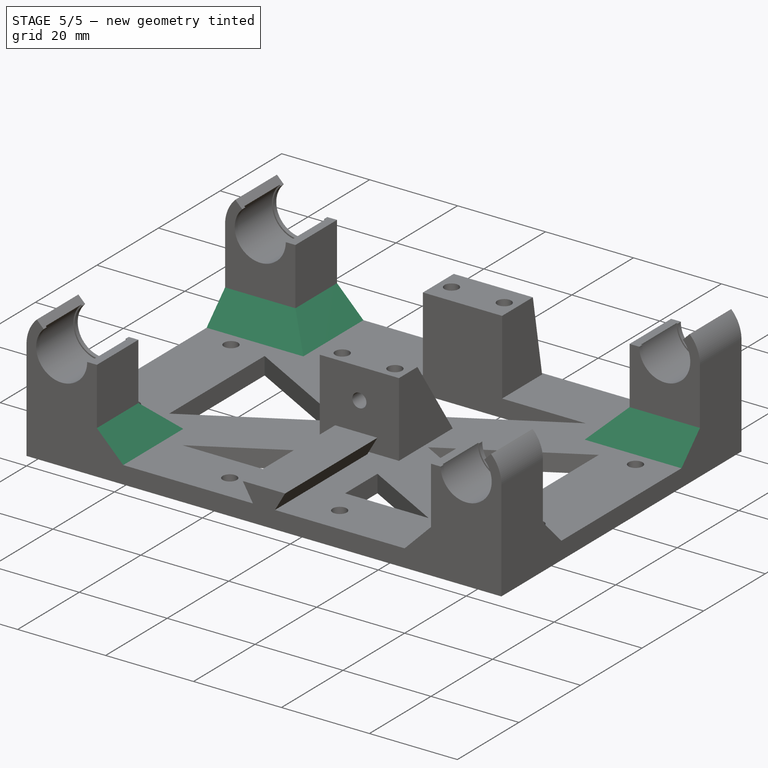
[diagram: stage 5 of 5 — iso view after this stage's code; geometry added in this stage tinted green]
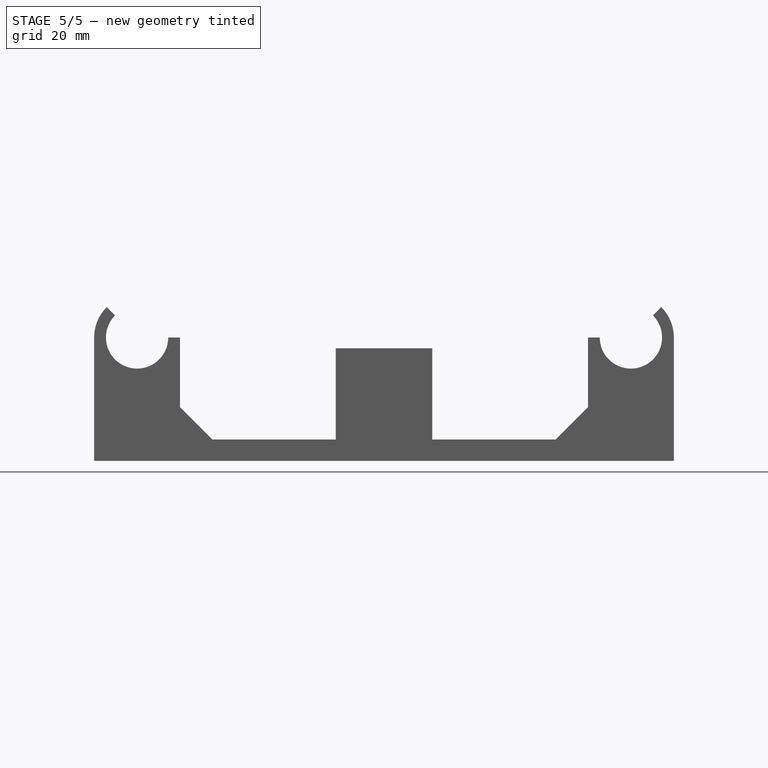
[diagram: stage 5 of 5 — front view after this stage's code; geometry added in this stage tinted green]
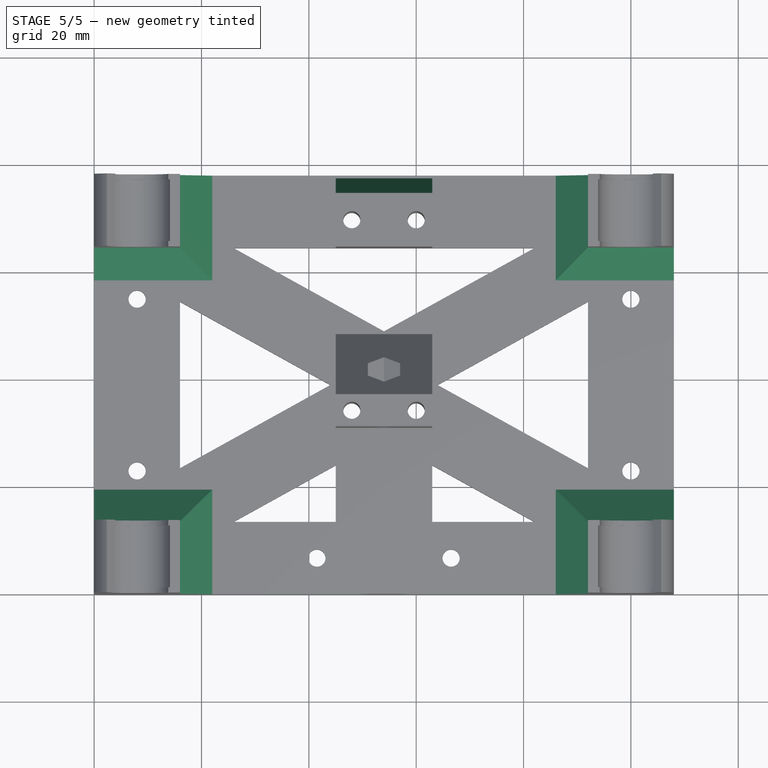
[diagram: stage 5 of 5 — top view after this stage's code; geometry added in this stage tinted green]
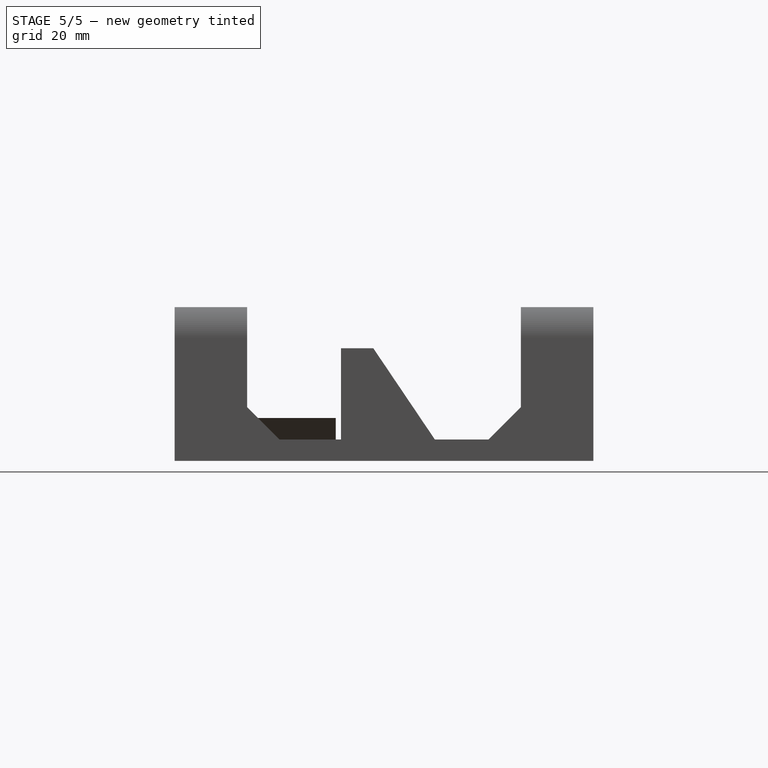
[diagram: stage 5 of 5 — right view after this stage's code; geometry added in this stage tinted green]
FEATURE [PartDesign::Draft] Draft001  label="BeltClampBase1Draft"
  Angle = 10
  Base = -> Pocket002 [Face75]
  BaseFeature = -> Pocket002
  NeutralPlane = -> Pocket002 [Face87]
FEATURE [PartDesign::Chamfer] Chamfer  label="BearingsBaseChamfer"
  Base = -> Draft001 [Edge143,Edge141,Edge138,Edge137,Edge135,Edge134,Edge132,Edge133]
  BaseFeature = -> Draft001
  Size = 6
FEATURE [Part::MultiFuse] Fusion  label="BedClampingFusion"
  Shapes = -> [Body001,Clone,Clone001,Clone002,Clone003]
FEATURE [Part::FeaturePython] refine  label="BedClampingFusion_Refined"  # WARN: FeaturePython — macro-defined, semantics opaque (R4)
  Base = -> Fusion
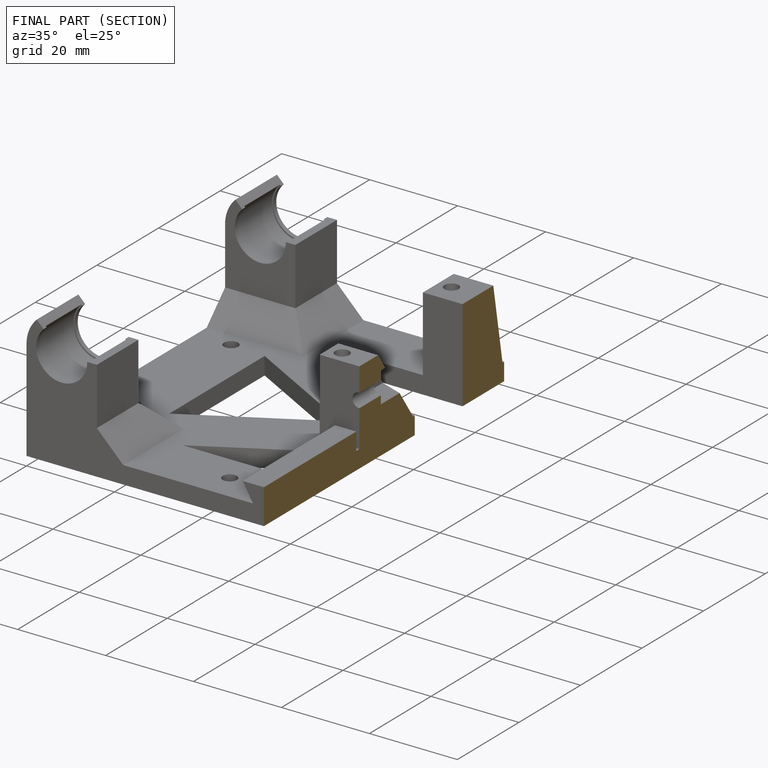
[diagram: finished part — half-section view (interior)]
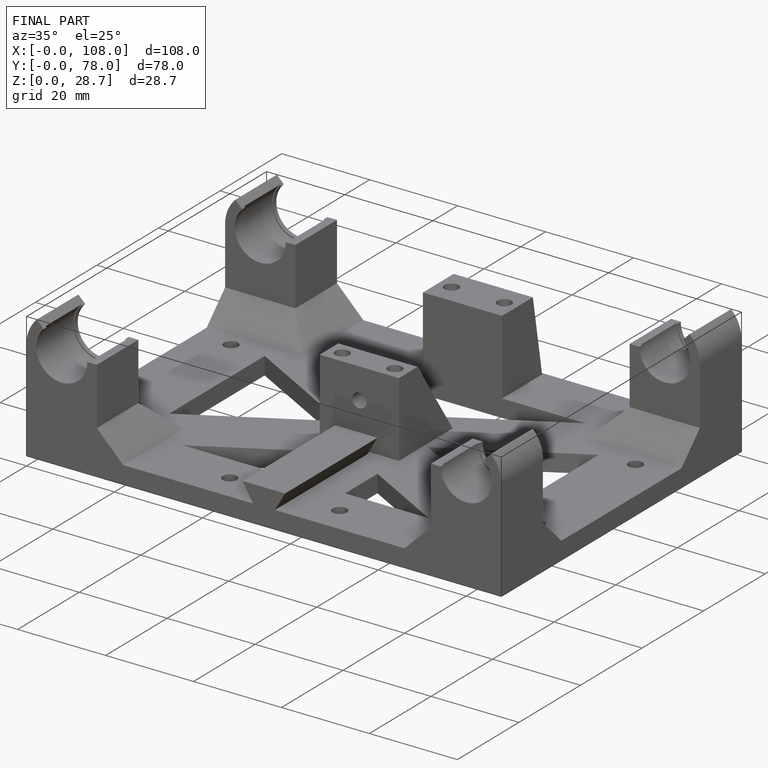
[diagram: finished part — iso view with bounding-box wireframe]
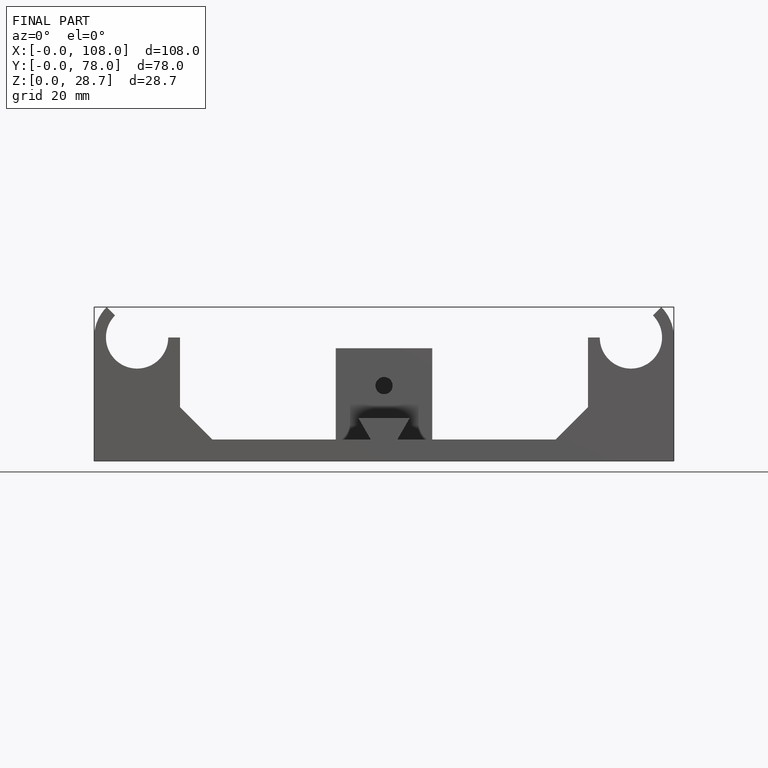
[diagram: finished part — front view with bounding-box wireframe]
